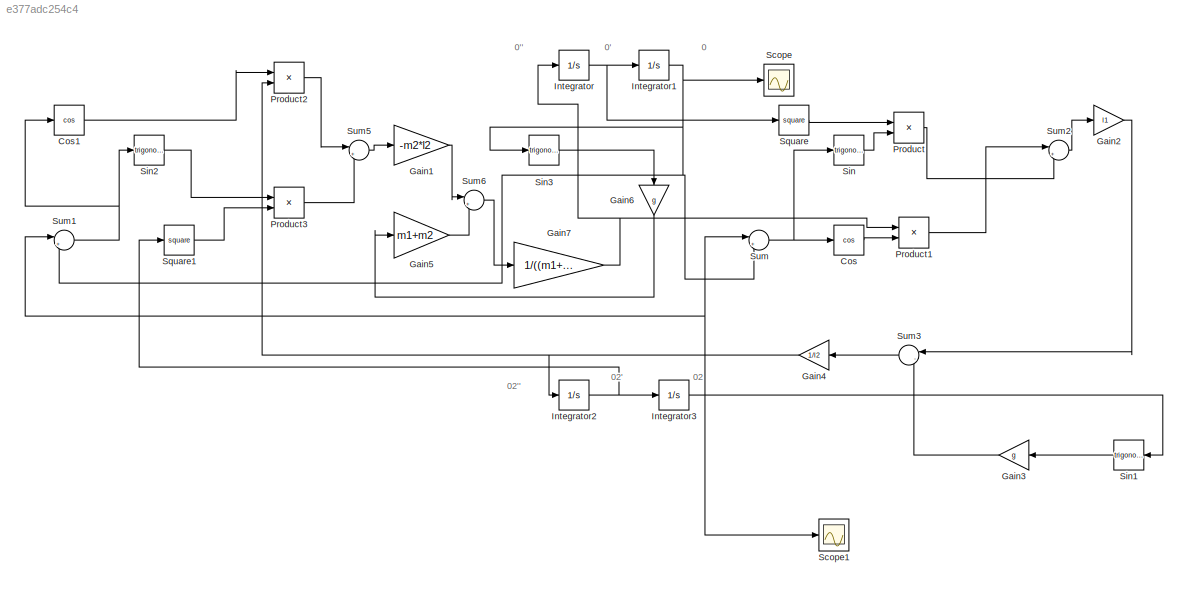
MODEL slx_e377adc254c4
KIND model
CONFIG AbsTol = auto
CONFIG EnableMultiTasking = off
CONFIG FixedStep = auto
CONFIG MaxStep = 0.01
CONFIG MinStep = auto
CONFIG RelTol = 1e-3
CONFIG SampleTimeConstraint = Unconstrained
CONFIG SolverName = VariableStepAuto
CONFIG StartTime = 0.0
CONFIG StopTime = 10
BLOCK [Trigonometry] Cos
  Operator = cos
BLOCK [Trigonometry] Cos1
  Operator = cos
BLOCK [Gain] Gain1
  Gain = -m2*l2
BLOCK [Gain] Gain2
  Gain = l1
BLOCK [Gain] Gain3
  Gain = g
  NameLocation = top
BLOCK [Gain] Gain4
  Gain = 1/l2
  NameLocation = top
BLOCK [Gain] Gain5
  Gain = m1+m2
BLOCK [Gain] Gain6
  Gain = g
  NameLocation = left
BLOCK [Gain] Gain7
  Gain = 1/((m1+m2)*l1)
BLOCK [Integrator] Integrator
BLOCK [Integrator] Integrator1
BLOCK [Integrator] Integrator2
BLOCK [Integrator] Integrator3
  InitialCondition = (35*pi)/180
BLOCK [Product] Product
BLOCK [Product] Product1
BLOCK [Product] Product2
BLOCK [Product] Product3
BLOCK [Scope] Scope
  Floating = off
  NumInputPorts = 1
  ScopeSpecificationString = Simulink.scopes.TimeScopeBlockCfg('CurrentConfiguration', extmgr.ConfigurationSet(extmgr.Configuration('Core','General UI',true),extmgr.Configuration('Core','Source UI',true),extmgr.Configuration('Sources','WiredSimulink',true),extmgr.Configuration('Visuals','Time Domain',true,'SerializedDisplays',{struct('MinYLimReal','-0.39229','MaxYLimReal','0.39135','YLabelReal','','MinYLimMag','0.00000','MaxY...<+1386ch>
BLOCK [Scope] Scope1
  Floating = off
  NumInputPorts = 1
  ScopeSpecificationString = Simulink.scopes.TimeScopeBlockCfg('CurrentConfiguration', extmgr.ConfigurationSet(extmgr.Configuration('Core','General UI',true),extmgr.Configuration('Core','Source UI',true),extmgr.Configuration('Sources','WiredSimulink',true,'DataLoggingVariableName','ScopeData1'),extmgr.Configuration('Visuals','Time Domain',true,'SerializedDisplays',{struct('MinYLimReal','-0.76297','MaxYLimReal','0.76351','YLab...<+1425ch>
BLOCK [Trigonometry] Sin
BLOCK [Trigonometry] Sin1
  NameLocation = top
BLOCK [Trigonometry] Sin2
BLOCK [Trigonometry] Sin3
BLOCK [Math] Square
  Operator = square
BLOCK [Math] Square1
  Operator = square
BLOCK [Sum] Sum
  Inputs = |+-
BLOCK [Sum] Sum1
  Inputs = |+-
BLOCK [Sum] Sum2
  Inputs = |++
BLOCK [Sum] Sum3
  Inputs = |--
  NameLocation = top
BLOCK [Sum] Sum5
  Inputs = |+-
BLOCK [Sum] Sum6
  Inputs = |+-
ANNOTATION (root): 0
ANNOTATION (root): 0'
ANNOTATION (root): 0''
ANNOTATION (root): 02
ANNOTATION (root): 02'
ANNOTATION (root): 02''
LINE Cos1:1 -> Product2:1
LINE Cos:1 -> Product1:2
LINE Gain1:1 -> Sum6:1
LINE Gain2:1 -> Sum3:1
LINE Gain3:1 -> Sum3:2
NET Gain4:1 -> Integrator2:1, Product2:2
LINE Gain5:1 -> Sum6:2
LINE Gain6:1 -> Gain5:1
NET Gain7:1 -> Integrator:1, Product1:1
NET Integrator1:1 -> Scope:1, Sin3:1, Sum1:2, Sum:2
NET Integrator2:1 -> Integrator3:1, Square1:1
NET Integrator3:1 -> Scope1:1, Sin1:1, Sum1:1, Sum:1
NET Integrator:1 -> Integrator1:1, Square:1
LINE Product1:1 -> Sum2:1
LINE Product2:1 -> Sum5:1
LINE Product3:1 -> Sum5:2
LINE Product:1 -> Sum2:2
LINE Sin1:1 -> Gain3:1
LINE Sin2:1 -> Product3:1
LINE Sin3:1 -> Gain6:1
LINE Sin:1 -> Product:2
LINE Square1:1 -> Product3:2
LINE Square:1 -> Product:1
NET Sum1:1 -> Cos1:1, Sin2:1
LINE Sum2:1 -> Gain2:1
LINE Sum3:1 -> Gain4:1
LINE Sum5:1 -> Gain1:1
LINE Sum6:1 -> Gain7:1
NET Sum:1 -> Cos:1, Sin:1
note: NET lines group one-source signal fan-out (src -> all destinations, sorted); 1:1 wires keep LINE
